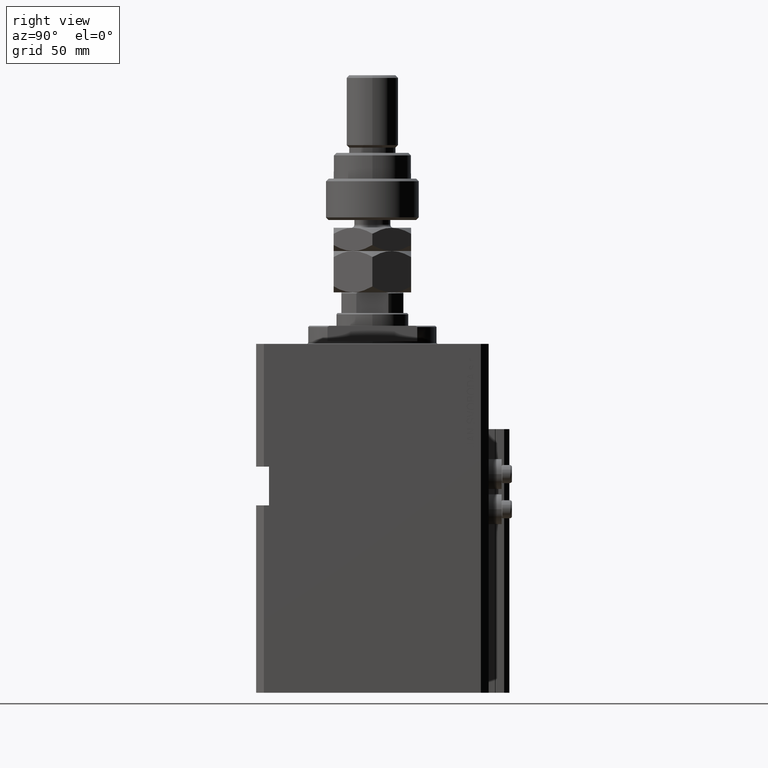
[diagram: clean part render]
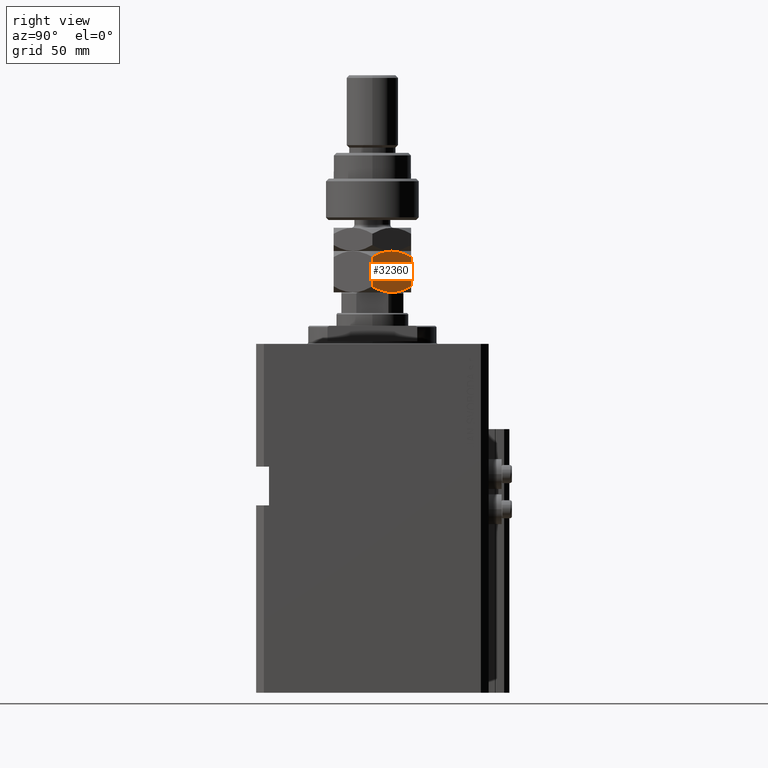
[diagram: same view with one face highlighted and labeled with its STEP entity id]
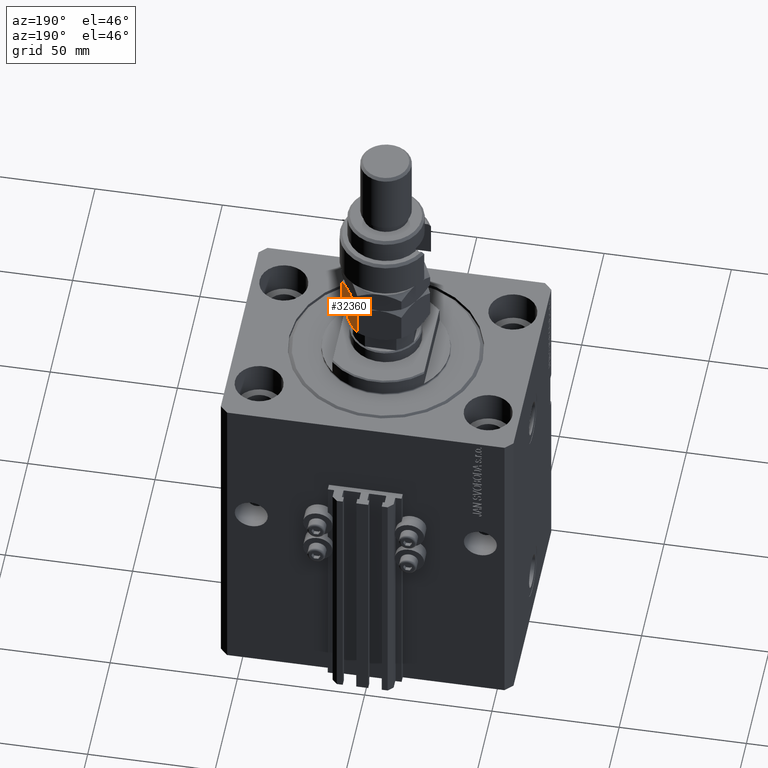
[diagram: same view with one face highlighted and labeled with its STEP entity id]
A machine part, right view. The second image highlights one B-rep face of the part: STEP entity #32360.
A second angle (auxiliary view) of the same face is appended — the face is thin or edge-on in the first view.
In plain terms, the highlighted planar face has unit normal (-0.866, -0.5, 0).
Its self-contained STEP definition (entity closure, byte-faithful):
#2107 = ORIENTED_EDGE ( 'NONE', *, *, #47454, .F. ) ;
#2493 = CARTESIAN_POINT ( 'NONE',  ( 15.00000000000000000, 8.660254037844389075, 16.00000000000000000 ) ) ;
#3661 = EDGE_CURVE ( 'NONE', #21191, #9281, #37603, .T. ) ;
#4057 = CARTESIAN_POINT ( 'NONE',  ( 8.823580389329306328, 12.22621156269319798, 15.94046462602529957 ) ) ;
#4513 = CARTESIAN_POINT ( 'NONE',  ( 4.913081180497409939, 14.48393933357810504, 15.76967007806078946 ) ) ;
#5025 = CARTESIAN_POINT ( 'NONE',  ( 6.195449321423087241, 13.74356374221446764, 16.00000000000000355 ) ) ;
#6063 = ORIENTED_EDGE ( 'NONE', *, *, #21321, .F. ) ;
#6107 = DIRECTION ( 'NONE',  ( -0.000000000000000000, -0.000000000000000000, -1.000000000000000000 ) ) ;
#6288 = VECTOR ( 'NONE', #27996, 1000.000000000000000 ) ;
#6501 = EDGE_CURVE ( 'NONE', #19640, #50139, #39941, .T. ) ;
#7090 = EDGE_LOOP ( 'NONE', ( #11287, #40684, #6063, #23769, #27667, #2107 ) ) ;
#8836 = CARTESIAN_POINT ( 'NONE',  ( 7.621669386706803087E-17, 17.32050807568877104, 2.320508075688761718 ) ) ;
#9101 = CARTESIAN_POINT ( 'NONE',  ( 4.881674457977373649, 14.50207201327941320, 0.2838026619462936107 ) ) ;
#9121 = CARTESIAN_POINT ( 'NONE',  ( 7.500000000000000000, 12.99038105676657651, 16.00000000000000000 ) ) ;
#9281 = VERTEX_POINT ( 'NONE', #46482 ) ;
#9515 = CARTESIAN_POINT ( 'NONE',  ( 7.499999999999997335, 12.99038105676658184, 0.000000000000000000 ) ) ;
#9871 = CARTESIAN_POINT ( 'NONE',  ( 1.176108425306640504, 16.64148155974179843, 1.641481559741787111 ) ) ;
#9899 = CARTESIAN_POINT ( 'NONE',  ( 7.499999999999997335, 12.99038105676658184, 0.000000000000000000 ) ) ;
#11287 = ORIENTED_EDGE ( 'NONE', *, *, #28724, .F. ) ;
#11374 = FACE_OUTER_BOUND ( 'NONE', #7090, .T. ) ;
#11861 = AXIS2_PLACEMENT_3D ( 'NONE', #2493, #43102, #14504 ) ;
#12387 = CARTESIAN_POINT ( 'NONE',  ( 15.00000000000000000, 8.660254037844389075, 13.67949192431123784 ) ) ;
#13795 = CARTESIAN_POINT ( 'NONE',  ( 13.82525345580783949, 9.338494271363313004, 1.642267842169781833 ) ) ;
#14504 = DIRECTION ( 'NONE',  ( 0.8660254037844387076, -0.4999999999999997224, 0.000000000000000000 ) ) ;
#16400 = CARTESIAN_POINT ( 'NONE',  ( 15.00000000000000000, 8.660254037844389075, 13.67949192431123784 ) ) ;
#17188 = CARTESIAN_POINT ( 'NONE',  ( 15.00000000000000000, 8.660254037844389075, 2.320508075688765715 ) ) ;
#18436 = CARTESIAN_POINT ( 'NONE',  ( 15.00000000000000000, 8.660254037844389075, 2.320508075688765715 ) ) ;
#19640 = VERTEX_POINT ( 'NONE', #16400 ) ;
#19745 = B_SPLINE_CURVE_WITH_KNOTS ( 'NONE', 3,
 ( #40678, #5025, #4513, #21466, #20419, #20934 ),
 .UNSPECIFIED., .F., .F.,
 ( 4, 2, 4 ),
 ( 0.008977392552884448998, 0.01343452311421656706, 0.01789165367554868338 ),
 .UNSPECIFIED. ) ;
#19920 = CARTESIAN_POINT ( 'NONE',  ( 3.803331551779305683E-16, 17.32050807568877104, 13.67949192431124317 ) ) ;
#19956 = CARTESIAN_POINT ( 'NONE',  ( 13.82389157469336283, 9.339280553791368789, 14.35851844025821400 ) ) ;
#20419 = CARTESIAN_POINT ( 'NONE',  ( 1.174746544192161846, 16.64226784216984356, 14.35773215783022572 ) ) ;
#20934 = CARTESIAN_POINT ( 'NONE',  ( 3.803331551779305683E-16, 17.32050807568877104, 13.67949192431124317 ) ) ;
#21191 = VERTEX_POINT ( 'NONE', #19920 ) ;
#21321 = EDGE_CURVE ( 'NONE', #39894, #21191, #19745, .T. ) ;
#21369 = CARTESIAN_POINT ( 'NONE',  ( 8.804550678576910983, 12.23719837131869426, -5.031375706690542042E-16 ) ) ;
#21466 = CARTESIAN_POINT ( 'NONE',  ( 2.383929548160350631, 15.94414570932928576, 14.93952096862913059 ) ) ;
#23306 = B_SPLINE_CURVE_WITH_KNOTS ( 'NONE', 3,
 ( #8836, #9871, #25748, #49663, #9101, #25236, #41590, #44729 ),
 .UNSPECIFIED., .F., .F.,
 ( 4, 2, 2, 4 ),
 ( 2.544309033652185071E-07, 0.004488823491893902638, 0.006733108022389172782, 0.008977392552884443794 ),
 .UNSPECIFIED. ) ;
#23769 = ORIENTED_EDGE ( 'NONE', *, *, #42133, .F. ) ;
#25236 = CARTESIAN_POINT ( 'NONE',  ( 6.176419610670692784, 13.75455055083996214, 0.05953537397470201609 ) ) ;
#25748 = CARTESIAN_POINT ( 'NONE',  ( 2.378834511187503331, 15.94708733029709080, 1.064486067744004671 ) ) ;
#27252 = PLANE ( 'NONE',  #11861 ) ;
#27667 = ORIENTED_EDGE ( 'NONE', *, *, #6501, .T. ) ;
#27996 = DIRECTION ( 'NONE',  ( -0.000000000000000000, -0.000000000000000000, -1.000000000000000000 ) ) ;
#28008 = CARTESIAN_POINT ( 'NONE',  ( 12.62116548881249756, 10.03367478323606221, 14.93551393225599710 ) ) ;
#28724 = EDGE_CURVE ( 'NONE', #9281, #28952, #23306, .T. ) ;
#28952 = VERTEX_POINT ( 'NONE', #9515 ) ;
#30255 = VECTOR ( 'NONE', #6107, 1000.000000000000000 ) ;
#31913 = CARTESIAN_POINT ( 'NONE',  ( 8.156876182308252510, 12.61113341608665728, 16.00000000000000355 ) ) ;
#32360 = ADVANCED_FACE ( 'NONE', ( #11374 ), #27252, .F. ) ;
#32400 = CARTESIAN_POINT ( 'NONE',  ( 15.00000000000000000, 8.660254037844389075, 16.00000000000000000 ) ) ;
#33316 = CARTESIAN_POINT ( 'NONE',  ( 10.08691881950258740, 11.49682277995505331, 0.2303299219392160591 ) ) ;
#37603 = LINE ( 'NONE', #38628, #30255 ) ;
#38628 = CARTESIAN_POINT ( 'NONE',  ( 0.000000000000000000, 17.32050807568877104, 16.00000000000000000 ) ) ;
#39434 = CARTESIAN_POINT ( 'NONE',  ( 10.75222765045651663, 11.11270654730956586, 15.55242859148697576 ) ) ;
#39894 = VERTEX_POINT ( 'NONE', #9121 ) ;
#39941 = LINE ( 'NONE', #32400, #6288 ) ;
#40678 = CARTESIAN_POINT ( 'NONE',  ( 7.500000000000000000, 12.99038105676657651, 16.00000000000000000 ) ) ;
#40684 = ORIENTED_EDGE ( 'NONE', *, *, #3661, .F. ) ;
#41590 = CARTESIAN_POINT ( 'NONE',  ( 6.843123817691747490, 13.36962869744650639, -3.557538378468061917E-16 ) ) ;
#42133 = EDGE_CURVE ( 'NONE', #19640, #39894, #47700, .T. ) ;
#43102 = DIRECTION ( 'NONE',  ( -0.4999999999999997780, -0.8660254037844388186, 0.000000000000000000 ) ) ;
#43601 = CARTESIAN_POINT ( 'NONE',  ( 7.500000000000000000, 12.99038105676657651, 16.00000000000000000 ) ) ;
#44729 = CARTESIAN_POINT ( 'NONE',  ( 7.499999999999997335, 12.99038105676658184, 0.000000000000000000 ) ) ;
#45011 = CARTESIAN_POINT ( 'NONE',  ( 12.61607045183964715, 10.03661640420386902, 1.060479031370879843 ) ) ;
#46482 = CARTESIAN_POINT ( 'NONE',  ( 7.621669386706803087E-17, 17.32050807568877104, 2.320508075688761718 ) ) ;
#47255 = CARTESIAN_POINT ( 'NONE',  ( 10.11832554202262457, 11.47869010025374514, 15.71619733805371411 ) ) ;
#47454 = EDGE_CURVE ( 'NONE', #28952, #50139, #48232, .T. ) ;
#47700 = B_SPLINE_CURVE_WITH_KNOTS ( 'NONE', 3,
 ( #12387, #19956, #28008, #39434, #47255, #4057, #31913, #43601 ),
 .UNSPECIFIED., .F., .F.,
 ( 4, 2, 2, 4 ),
 ( 2.544309033641602453E-07, 0.004488823491893906975, 0.006733108022389177119, 0.008977392552884448998 ),
 .UNSPECIFIED. ) ;
#48232 = B_SPLINE_CURVE_WITH_KNOTS ( 'NONE', 3,
 ( #9899, #21369, #33316, #45011, #13795, #17188 ),
 .UNSPECIFIED., .F., .F.,
 ( 4, 2, 4 ),
 ( 0.008977392552884443794, 0.01343452311421656532, 0.01789165367554868685 ),
 .UNSPECIFIED. ) ;
#49663 = CARTESIAN_POINT ( 'NONE',  ( 4.247772349543482484, 14.86805556622358893, 0.4475714085130255149 ) ) ;
#50139 = VERTEX_POINT ( 'NONE', #18436 ) ;